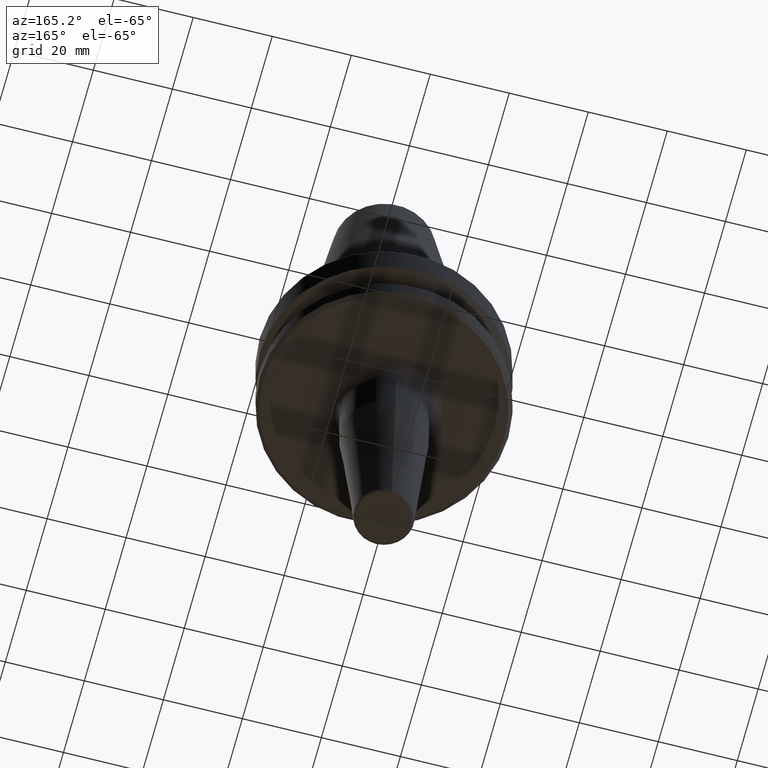
[diagram: clean part render]
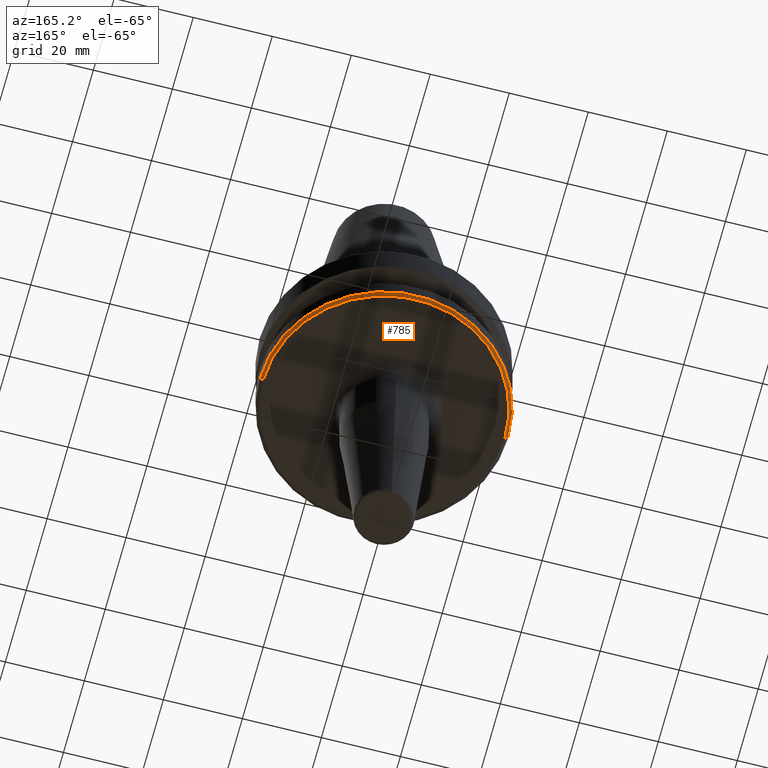
[diagram: same view with one face highlighted and labeled with its STEP entity id]
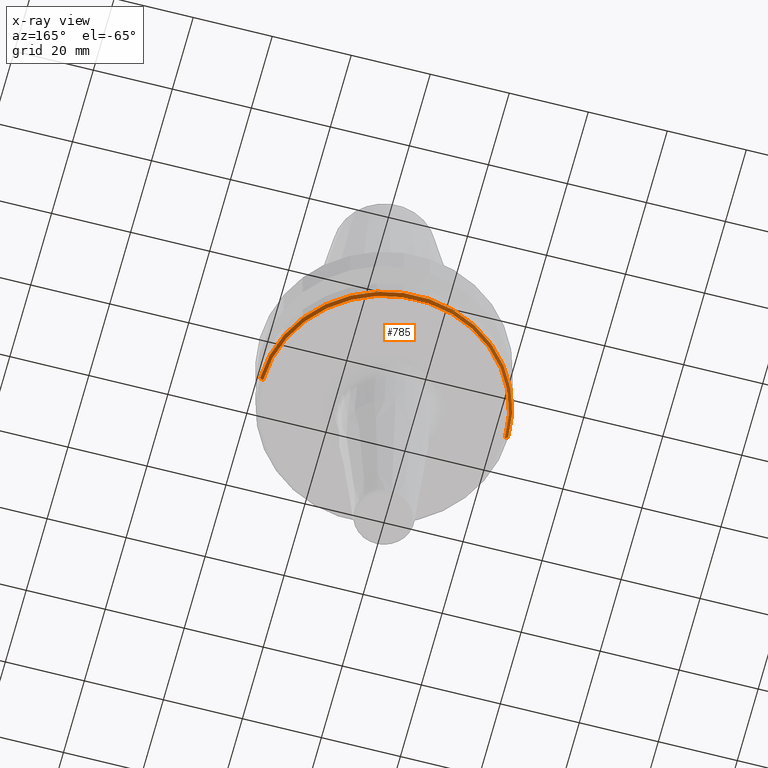
[diagram: x-ray of the same camera — body ghosted, the highlighted face saturated]
A machine part, auxiliary view. The second image highlights one B-rep face of the part: STEP entity #785.
The next image is the same camera in x-ray: the body ghosted, the highlighted face saturated — about 0% of this face is hidden behind the body in this view.
In plain terms, the highlighted conical surface has half-angle 45 deg.
Its self-contained STEP definition (entity closure, byte-faithful):
#41 = EDGE_CURVE ( 'NONE', #301, #475, #452, .T. ) ;
#93 = DIRECTION ( 'NONE',  ( 1.000000000000000000, 0.0000000000000000000, 0.0000000000000000000 ) ) ;
#106 = CARTESIAN_POINT ( 'NONE',  ( -31.38284271247462300, 3.843289787597688400E-015, -26.11715728752539400 ) ) ;
#109 = CARTESIAN_POINT ( 'NONE',  ( -30.61715728752538400, 3.749520367115901800E-015, -26.88284271247462300 ) ) ;
#141 = CONICAL_SURFACE ( 'NONE', #1108, 31.38284271247462300, 0.7853981633974482800 ) ;
#189 = VECTOR ( 'NONE', #531, 1000.000000000000000 ) ;
#216 = DIRECTION ( 'NONE',  ( -0.7071067811865474600, 8.659560562354931600E-017, 0.7071067811865475700 ) ) ;
#258 = CARTESIAN_POINT ( 'NONE',  ( 0.0000000000000000000, 0.0000000000000000000, -26.88284271247462300 ) ) ;
#301 = VERTEX_POINT ( 'NONE', #1122 ) ;
#331 = CARTESIAN_POINT ( 'NONE',  ( 31.38284271247462300, 0.0000000000000000000, -26.11715728752539400 ) ) ;
#341 = EDGE_LOOP ( 'NONE', ( #749, #807, #1153, #1173 ) ) ;
#354 = DIRECTION ( 'NONE',  ( 1.000000000000000000, 0.0000000000000000000, 0.0000000000000000000 ) ) ;
#362 = EDGE_CURVE ( 'NONE', #715, #1198, #895, .T. ) ;
#416 = DIRECTION ( 'NONE',  ( -0.0000000000000000000, -0.0000000000000000000, 1.000000000000000000 ) ) ;
#433 = CARTESIAN_POINT ( 'NONE',  ( -31.38284271247462300, 3.843289787597688400E-015, -26.11715728752539400 ) ) ;
#452 = LINE ( 'NONE', #634, #189 ) ;
#475 = VERTEX_POINT ( 'NONE', #331 ) ;
#531 = DIRECTION ( 'NONE',  ( 0.7071067811865474600, 0.0000000000000000000, 0.7071067811865475700 ) ) ;
#543 = CIRCLE ( 'NONE', #1175, 31.38284271247462300 ) ;
#634 = CARTESIAN_POINT ( 'NONE',  ( 31.38284271247462300, 0.0000000000000000000, -26.11715728752539400 ) ) ;
#688 = DIRECTION ( 'NONE',  ( -0.0000000000000000000, -0.0000000000000000000, 1.000000000000000000 ) ) ;
#694 = FACE_OUTER_BOUND ( 'NONE', #341, .T. ) ;
#715 = VERTEX_POINT ( 'NONE', #109 ) ;
#740 = EDGE_CURVE ( 'NONE', #475, #1198, #543, .T. ) ;
#749 = ORIENTED_EDGE ( 'NONE', *, *, #1015, .T. ) ;
#779 = CIRCLE ( 'NONE', #857, 30.61715728752539100 ) ;
#785 = ADVANCED_FACE ( 'NONE', ( #694 ), #141, .T. ) ;
#807 = ORIENTED_EDGE ( 'NONE', *, *, #362, .T. ) ;
#857 = AXIS2_PLACEMENT_3D ( 'NONE', #258, #941, #354 ) ;
#881 = CARTESIAN_POINT ( 'NONE',  ( 0.0000000000000000000, 0.0000000000000000000, -26.11715728752539400 ) ) ;
#895 = LINE ( 'NONE', #106, #942 ) ;
#941 = DIRECTION ( 'NONE',  ( -0.0000000000000000000, -0.0000000000000000000, 1.000000000000000000 ) ) ;
#942 = VECTOR ( 'NONE', #216, 1000.000000000000000 ) ;
#999 = CARTESIAN_POINT ( 'NONE',  ( 0.0000000000000000000, 0.0000000000000000000, -26.11715728752539400 ) ) ;
#1015 = EDGE_CURVE ( 'NONE', #301, #715, #779, .T. ) ;
#1101 = DIRECTION ( 'NONE',  ( 1.000000000000000000, 0.0000000000000000000, 0.0000000000000000000 ) ) ;
#1108 = AXIS2_PLACEMENT_3D ( 'NONE', #881, #688, #93 ) ;
#1122 = CARTESIAN_POINT ( 'NONE',  ( 30.61715728752538400, 0.0000000000000000000, -26.88284271247462300 ) ) ;
#1153 = ORIENTED_EDGE ( 'NONE', *, *, #740, .F. ) ;
#1173 = ORIENTED_EDGE ( 'NONE', *, *, #41, .F. ) ;
#1175 = AXIS2_PLACEMENT_3D ( 'NONE', #999, #416, #1101 ) ;
#1198 = VERTEX_POINT ( 'NONE', #433 ) ;